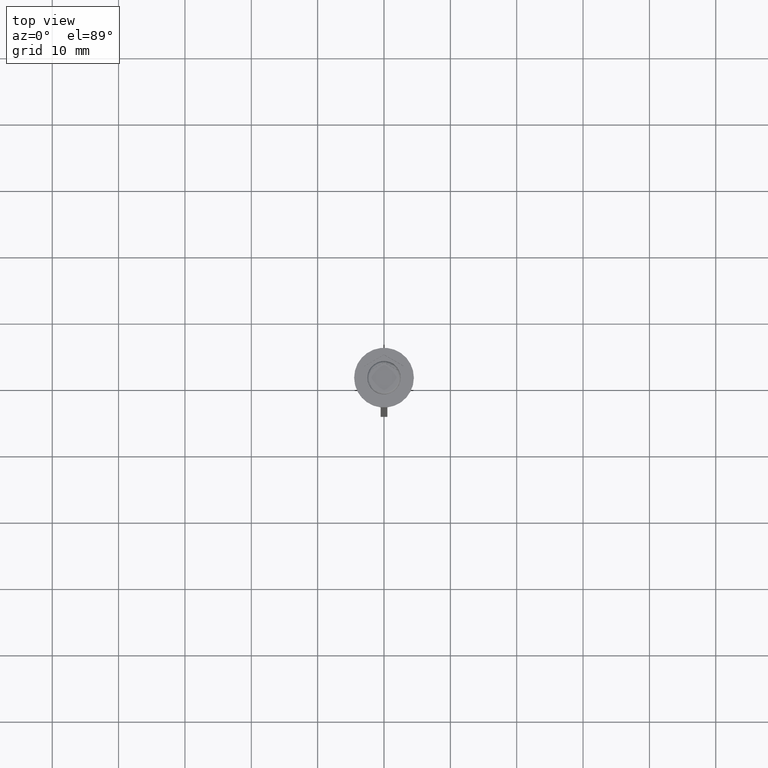
[diagram: clean part render]
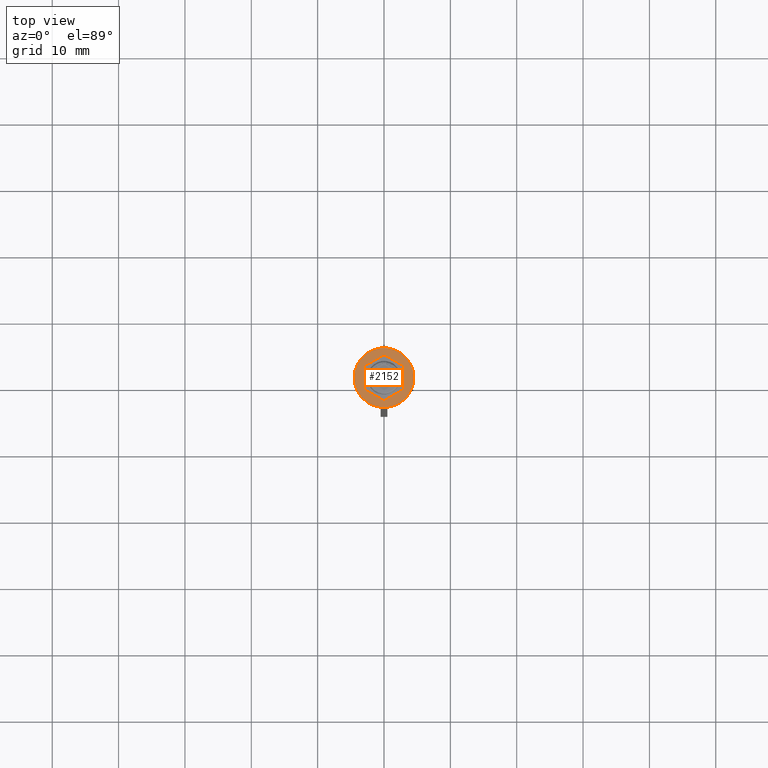
[diagram: same view with one face highlighted and labeled with its STEP entity id]
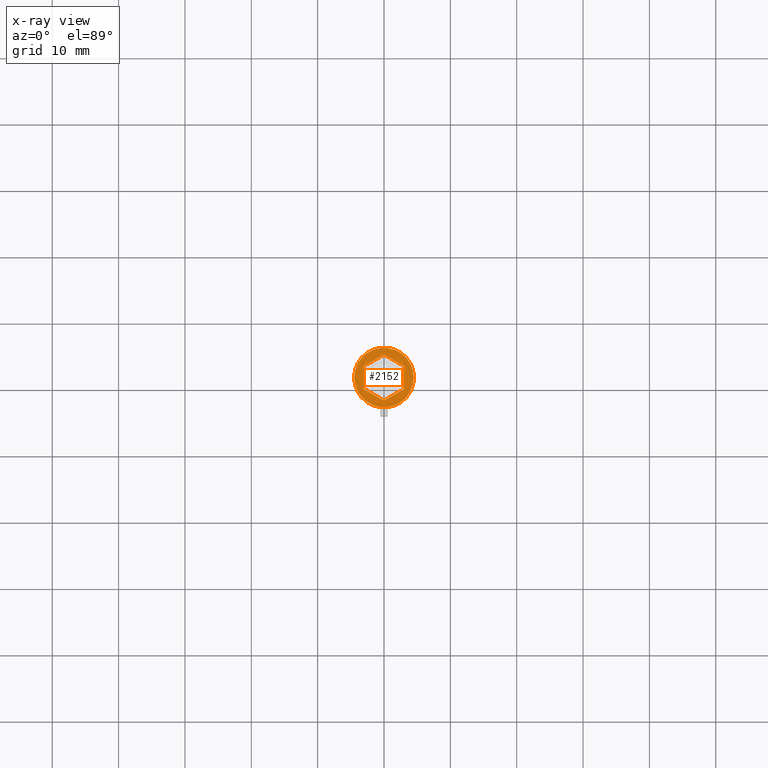
[diagram: x-ray of the same camera — body ghosted, the highlighted face saturated]
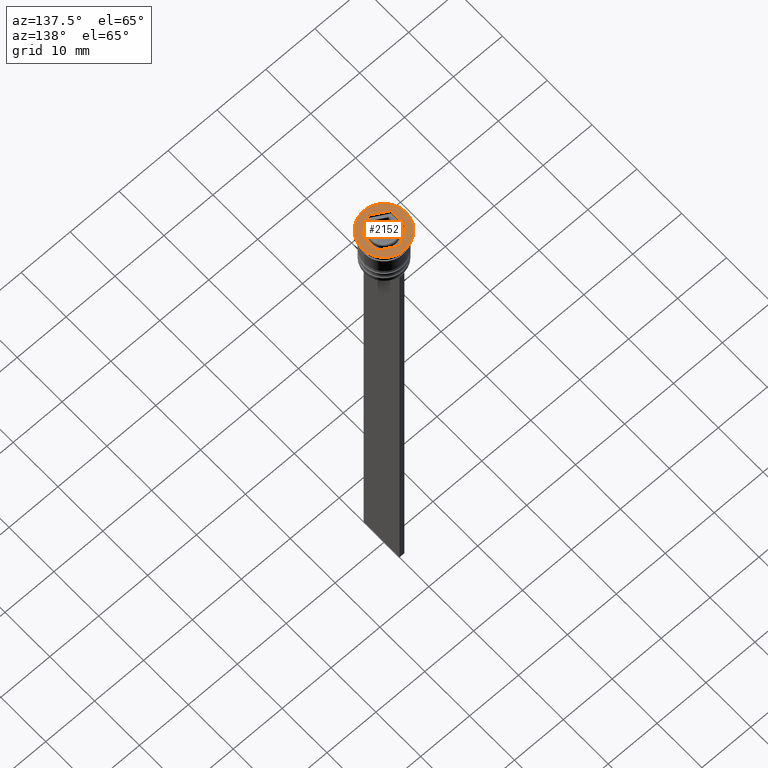
[diagram: same view with one face highlighted and labeled with its STEP entity id]
A machine part, top view. The second image highlights one B-rep face of the part: STEP entity #2152.
The next image is the same camera in x-ray: the body ghosted, the highlighted face saturated — about 0% of this face is hidden behind the body in this view.
A second angle (auxiliary view) of the same face is appended — the face is thin or edge-on in the first view.
In plain terms, the highlighted planar face has unit normal (0, -0, 1).
Its self-contained STEP definition (entity closure, byte-faithful):
#47 = CARTESIAN_POINT ( 'NONE',  ( -4.500000000000000000, 5.510910596163088569E-16, 0.000000000000000000 ) ) ;
#65 = AXIS2_PLACEMENT_3D ( 'NONE', #1524, #1765, #1125 ) ;
#74 = EDGE_CURVE ( 'NONE', #1269, #1348, #2070, .T. ) ;
#133 = ORIENTED_EDGE ( 'NONE', *, *, #268, .F. ) ;
#157 = VECTOR ( 'NONE', #1286, 1000.000000000000000 ) ;
#211 = CARTESIAN_POINT ( 'NONE',  ( 3.000000000000000888, 1.732050807568877415, 0.000000000000000000 ) ) ;
#228 = ORIENTED_EDGE ( 'NONE', *, *, #74, .F. ) ;
#268 = EDGE_CURVE ( 'NONE', #902, #1760, #1730, .T. ) ;
#358 = ORIENTED_EDGE ( 'NONE', *, *, #1377, .T. ) ;
#408 = VECTOR ( 'NONE', #1115, 1000.000000000000000 ) ;
#428 = CIRCLE ( 'NONE', #1079, 4.500000000000000000 ) ;
#514 = VERTEX_POINT ( 'NONE', #47 ) ;
#537 = EDGE_CURVE ( 'NONE', #1348, #2062, #849, .T. ) ;
#542 = AXIS2_PLACEMENT_3D ( 'NONE', #1273, #1489, #1843 ) ;
#554 = ORIENTED_EDGE ( 'NONE', *, *, #1334, .F. ) ;
#657 = FACE_BOUND ( 'NONE', #833, .T. ) ;
#718 = CARTESIAN_POINT ( 'NONE',  ( -2.112280747572084180E-16, -3.464101615137754830, 0.000000000000000000 ) ) ;
#755 = VERTEX_POINT ( 'NONE', #2506 ) ;
#764 = DIRECTION ( 'NONE',  ( 0.8660254037844385966, -0.4999999999999998890, 0.000000000000000000 ) ) ;
#807 = CIRCLE ( 'NONE', #65, 4.500000000000000000 ) ;
#833 = EDGE_LOOP ( 'NONE', ( #1534, #2402, #228, #554, #133, #948 ) ) ;
#849 = LINE ( 'NONE', #892, #1260 ) ;
#874 = VECTOR ( 'NONE', #1787, 1000.000000000000114 ) ;
#892 = CARTESIAN_POINT ( 'NONE',  ( 3.000000000000000000, -1.732050807568876971, 0.000000000000000000 ) ) ;
#902 = VERTEX_POINT ( 'NONE', #2167 ) ;
#948 = ORIENTED_EDGE ( 'NONE', *, *, #1670, .F. ) ;
#967 = LINE ( 'NONE', #2336, #1580 ) ;
#1068 = PLANE ( 'NONE',  #542 ) ;
#1079 = AXIS2_PLACEMENT_3D ( 'NONE', #2270, #1259, #2410 ) ;
#1115 = DIRECTION ( 'NONE',  ( 0.000000000000000000, -1.000000000000000000, 0.000000000000000000 ) ) ;
#1125 = DIRECTION ( 'NONE',  ( 1.000000000000000000, 0.000000000000000000, 0.000000000000000000 ) ) ;
#1129 = CARTESIAN_POINT ( 'NONE',  ( -3.000000000000000000, -1.732050807568877637, 0.000000000000000000 ) ) ;
#1259 = DIRECTION ( 'NONE',  ( -0.000000000000000000, -0.000000000000000000, 1.000000000000000000 ) ) ;
#1260 = VECTOR ( 'NONE', #1862, 1000.000000000000000 ) ;
#1269 = VERTEX_POINT ( 'NONE', #718 ) ;
#1273 = CARTESIAN_POINT ( 'NONE',  ( 0.000000000000000000, 0.000000000000000000, 0.000000000000000000 ) ) ;
#1286 = DIRECTION ( 'NONE',  ( 0.8660254037844385966, 0.5000000000000001110, 0.000000000000000000 ) ) ;
#1334 = EDGE_CURVE ( 'NONE', #1760, #1269, #967, .T. ) ;
#1348 = VERTEX_POINT ( 'NONE', #2499 ) ;
#1377 = EDGE_CURVE ( 'NONE', #514, #1465, #807, .T. ) ;
#1450 = CARTESIAN_POINT ( 'NONE',  ( 3.000000000000000888, 1.732050807568877415, 0.000000000000000000 ) ) ;
#1465 = VERTEX_POINT ( 'NONE', #2137 ) ;
#1489 = DIRECTION ( 'NONE',  ( 0.000000000000000000, -0.000000000000000000, 1.000000000000000000 ) ) ;
#1493 = CARTESIAN_POINT ( 'NONE',  ( 0.000000000000000000, 3.464101615137754386, 0.000000000000000000 ) ) ;
#1518 = EDGE_LOOP ( 'NONE', ( #1573, #358 ) ) ;
#1524 = CARTESIAN_POINT ( 'NONE',  ( 0.000000000000000000, 0.000000000000000000, 0.000000000000000000 ) ) ;
#1534 = ORIENTED_EDGE ( 'NONE', *, *, #1947, .F. ) ;
#1572 = LINE ( 'NONE', #211, #874 ) ;
#1573 = ORIENTED_EDGE ( 'NONE', *, *, #2030, .T. ) ;
#1580 = VECTOR ( 'NONE', #764, 1000.000000000000227 ) ;
#1653 = CARTESIAN_POINT ( 'NONE',  ( -2.112280747572084180E-16, -3.464101615137754830, 0.000000000000000000 ) ) ;
#1670 = EDGE_CURVE ( 'NONE', #755, #902, #1838, .T. ) ;
#1730 = LINE ( 'NONE', #2281, #408 ) ;
#1760 = VERTEX_POINT ( 'NONE', #1129 ) ;
#1765 = DIRECTION ( 'NONE',  ( -0.000000000000000000, -0.000000000000000000, 1.000000000000000000 ) ) ;
#1787 = DIRECTION ( 'NONE',  ( -0.8660254037844387076, 0.4999999999999997780, 0.000000000000000000 ) ) ;
#1790 = VECTOR ( 'NONE', #2274, 1000.000000000000227 ) ;
#1838 = LINE ( 'NONE', #1493, #1790 ) ;
#1843 = DIRECTION ( 'NONE',  ( 1.000000000000000000, 0.000000000000000000, 0.000000000000000000 ) ) ;
#1862 = DIRECTION ( 'NONE',  ( 2.503857664561932376E-16, 1.000000000000000000, 0.000000000000000000 ) ) ;
#1947 = EDGE_CURVE ( 'NONE', #2062, #755, #1572, .T. ) ;
#2030 = EDGE_CURVE ( 'NONE', #1465, #514, #428, .T. ) ;
#2062 = VERTEX_POINT ( 'NONE', #1450 ) ;
#2070 = LINE ( 'NONE', #1653, #157 ) ;
#2137 = CARTESIAN_POINT ( 'NONE',  ( 4.500000000000000000, 0.000000000000000000, 0.000000000000000000 ) ) ;
#2152 = ADVANCED_FACE ( 'NONE', ( #657, #2421 ), #1068, .T. ) ;
#2167 = CARTESIAN_POINT ( 'NONE',  ( -3.000000000000000000, 1.732050807568876749, 0.000000000000000000 ) ) ;
#2270 = CARTESIAN_POINT ( 'NONE',  ( 0.000000000000000000, 0.000000000000000000, 0.000000000000000000 ) ) ;
#2274 = DIRECTION ( 'NONE',  ( -0.8660254037844385966, -0.5000000000000000000, 0.000000000000000000 ) ) ;
#2281 = CARTESIAN_POINT ( 'NONE',  ( -3.000000000000000000, 1.732050807568876749, 0.000000000000000000 ) ) ;
#2336 = CARTESIAN_POINT ( 'NONE',  ( -3.000000000000000000, -1.732050807568877637, 0.000000000000000000 ) ) ;
#2402 = ORIENTED_EDGE ( 'NONE', *, *, #537, .F. ) ;
#2410 = DIRECTION ( 'NONE',  ( 1.000000000000000000, 0.000000000000000000, 0.000000000000000000 ) ) ;
#2421 = FACE_OUTER_BOUND ( 'NONE', #1518, .T. ) ;
#2499 = CARTESIAN_POINT ( 'NONE',  ( 3.000000000000000000, -1.732050807568876971, 0.000000000000000000 ) ) ;
#2506 = CARTESIAN_POINT ( 'NONE',  ( -2.168404344971008868E-16, 3.464101615137753942, 0.000000000000000000 ) ) ;